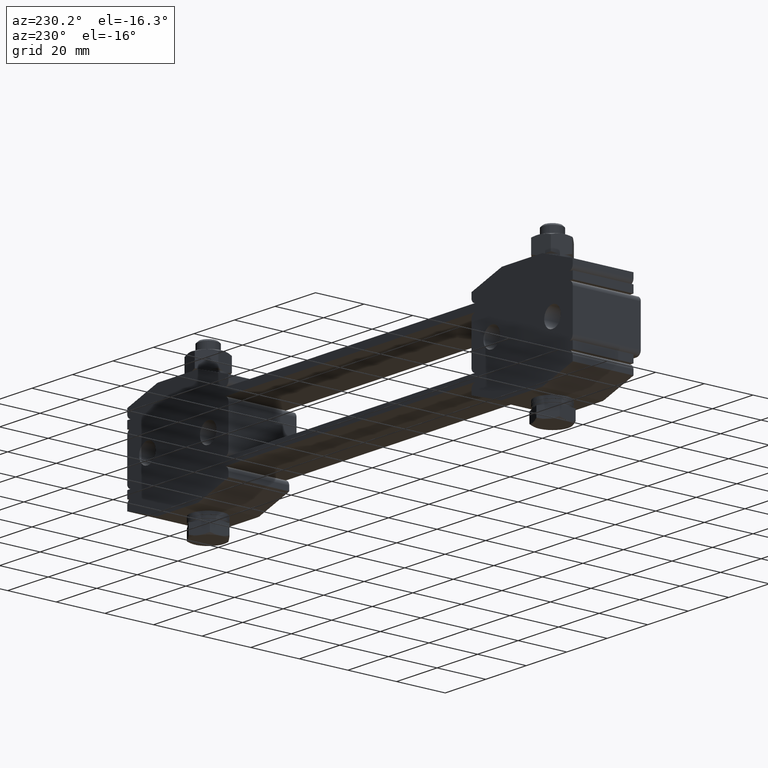
[diagram: clean part render]
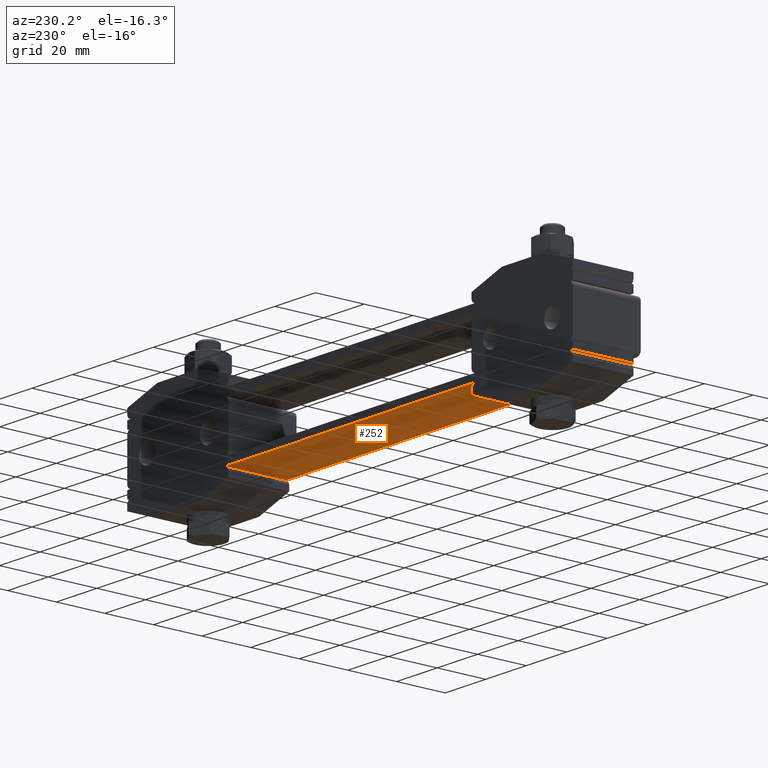
[diagram: same view with one face highlighted and labeled with its STEP entity id]
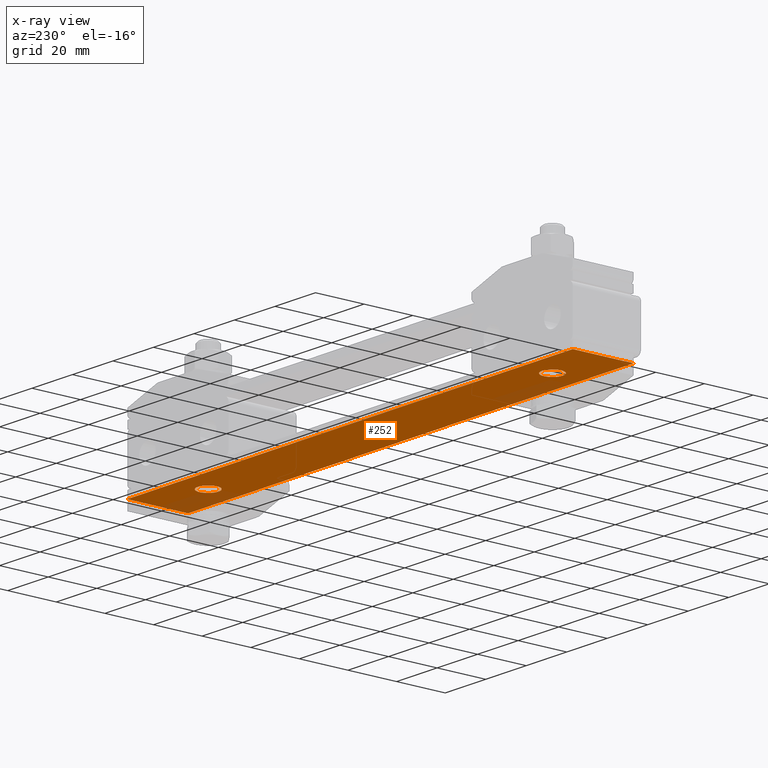
[diagram: x-ray of the same camera — body ghosted, the highlighted face saturated]
A machine part, auxiliary view. The second image highlights one B-rep face of the part: STEP entity #252.
The next image is the same camera in x-ray: the body ghosted, the highlighted face saturated — about 10% of this face is hidden behind the body in this view.
In plain terms, the highlighted planar face has unit normal (0, 0, 1).
Its self-contained STEP definition (entity closure, byte-faithful):
#252 = ADVANCED_FACE ( 'NONE', ( #19926, #18120, #3997 ), #19824, .F. ) ;
#714 = DIRECTION ( 'NONE',  ( 1.000000000000000000, 0.0000000000000000000, 0.0000000000000000000 ) ) ;
#1143 = CIRCLE ( 'NONE', #4591, 4.250000000000003600 ) ;
#1643 = EDGE_CURVE ( 'NONE', #16455, #8776, #7256, .T. ) ;
#1852 = EDGE_CURVE ( 'NONE', #15294, #11315, #16503, .T. ) ;
#1872 = DIRECTION ( 'NONE',  ( 1.000000000000000000, 0.0000000000000000000, 0.0000000000000000000 ) ) ;
#2664 = EDGE_CURVE ( 'NONE', #8776, #16455, #16703, .T. ) ;
#2844 = VECTOR ( 'NONE', #17029, 1000.000000000000000 ) ;
#3028 = VERTEX_POINT ( 'NONE', #3148 ) ;
#3146 = VERTEX_POINT ( 'NONE', #20947 ) ;
#3148 = CARTESIAN_POINT ( 'NONE',  ( 89.25000000000001400, 2.133878290461802200E-014, 0.0000000000000000000 ) ) ;
#3540 = CARTESIAN_POINT ( 'NONE',  ( -110.0000000000000000, -12.50000000000000000, 0.0000000000000000000 ) ) ;
#3997 = FACE_OUTER_BOUND ( 'NONE', #4867, .T. ) ;
#4006 = DIRECTION ( 'NONE',  ( 0.0000000000000000000, 0.0000000000000000000, -1.000000000000000000 ) ) ;
#4337 = CARTESIAN_POINT ( 'NONE',  ( 110.0000000000000000, 12.50000000000000000, 0.0000000000000000000 ) ) ;
#4379 = LINE ( 'NONE', #16954, #2844 ) ;
#4591 = AXIS2_PLACEMENT_3D ( 'NONE', #7356, #18838, #9116 ) ;
#4764 = ORIENTED_EDGE ( 'NONE', *, *, #15330, .F. ) ;
#4823 = LINE ( 'NONE', #6743, #14318 ) ;
#4867 = EDGE_LOOP ( 'NONE', ( #4764, #10879, #11140, #16963 ) ) ;
#5522 = DIRECTION ( 'NONE',  ( -1.000000000000000000, 0.0000000000000000000, 0.0000000000000000000 ) ) ;
#5712 = EDGE_CURVE ( 'NONE', #3146, #3028, #17015, .T. ) ;
#6003 = DIRECTION ( 'NONE',  ( -1.000000000000000000, 0.0000000000000000000, 0.0000000000000000000 ) ) ;
#6743 = CARTESIAN_POINT ( 'NONE',  ( -110.0000000000000000, -12.50000000000000000, 0.0000000000000000000 ) ) ;
#7021 = CARTESIAN_POINT ( 'NONE',  ( -89.25000000000001400, 0.0000000000000000000, 0.0000000000000000000 ) ) ;
#7256 = CIRCLE ( 'NONE', #8174, 4.250000000000003600 ) ;
#7257 = DIRECTION ( 'NONE',  ( 0.0000000000000000000, 0.0000000000000000000, -1.000000000000000000 ) ) ;
#7356 = CARTESIAN_POINT ( 'NONE',  ( 85.00000000000000000, 2.081830801498040100E-014, 0.0000000000000000000 ) ) ;
#7458 = DIRECTION ( 'NONE',  ( 0.0000000000000000000, -1.000000000000000000, 0.0000000000000000000 ) ) ;
#8174 = AXIS2_PLACEMENT_3D ( 'NONE', #8866, #4006, #5522 ) ;
#8776 = VERTEX_POINT ( 'NONE', #20817 ) ;
#8866 = CARTESIAN_POINT ( 'NONE',  ( -85.00000000000000000, 0.0000000000000000000, 0.0000000000000000000 ) ) ;
#8887 = CARTESIAN_POINT ( 'NONE',  ( -85.00000000000000000, 0.0000000000000000000, 0.0000000000000000000 ) ) ;
#9025 = CARTESIAN_POINT ( 'NONE',  ( -110.0000000000000000, 12.50000000000000000, 0.0000000000000000000 ) ) ;
#9116 = DIRECTION ( 'NONE',  ( -1.000000000000000000, 0.0000000000000000000, 0.0000000000000000000 ) ) ;
#9551 = DIRECTION ( 'NONE',  ( 0.0000000000000000000, 0.0000000000000000000, -1.000000000000000000 ) ) ;
#10319 = CARTESIAN_POINT ( 'NONE',  ( 110.0000000000000000, -12.50000000000000000, 0.0000000000000000000 ) ) ;
#10534 = DIRECTION ( 'NONE',  ( -1.000000000000000000, 0.0000000000000000000, 0.0000000000000000000 ) ) ;
#10879 = ORIENTED_EDGE ( 'NONE', *, *, #13334, .F. ) ;
#11140 = ORIENTED_EDGE ( 'NONE', *, *, #1852, .F. ) ;
#11315 = VERTEX_POINT ( 'NONE', #4337 ) ;
#11363 = EDGE_LOOP ( 'NONE', ( #20173, #12164 ) ) ;
#11686 = CARTESIAN_POINT ( 'NONE',  ( -110.0000000000000000, 12.50000000000000000, 0.0000000000000000000 ) ) ;
#11927 = VECTOR ( 'NONE', #17747, 1000.000000000000000 ) ;
#12164 = ORIENTED_EDGE ( 'NONE', *, *, #16200, .F. ) ;
#12397 = AXIS2_PLACEMENT_3D ( 'NONE', #20711, #9551, #6003 ) ;
#12899 = EDGE_LOOP ( 'NONE', ( #21093, #19384 ) ) ;
#13271 = AXIS2_PLACEMENT_3D ( 'NONE', #8887, #7257, #10534 ) ;
#13334 = EDGE_CURVE ( 'NONE', #11315, #14154, #4379, .T. ) ;
#13795 = DIRECTION ( 'NONE',  ( 0.0000000000000000000, 0.0000000000000000000, 1.000000000000000000 ) ) ;
#13833 = VECTOR ( 'NONE', #7458, 1000.000000000000000 ) ;
#14154 = VERTEX_POINT ( 'NONE', #11686 ) ;
#14318 = VECTOR ( 'NONE', #1872, 1000.000000000000000 ) ;
#15261 = CARTESIAN_POINT ( 'NONE',  ( -110.0000000000000000, -12.50000000000000000, 0.0000000000000000000 ) ) ;
#15294 = VERTEX_POINT ( 'NONE', #10319 ) ;
#15330 = EDGE_CURVE ( 'NONE', #14154, #16066, #15663, .T. ) ;
#15647 = EDGE_CURVE ( 'NONE', #16066, #15294, #4823, .T. ) ;
#15663 = LINE ( 'NONE', #9025, #13833 ) ;
#16066 = VERTEX_POINT ( 'NONE', #15261 ) ;
#16129 = CARTESIAN_POINT ( 'NONE',  ( 110.0000000000000000, 12.50000000000000000, 0.0000000000000000000 ) ) ;
#16200 = EDGE_CURVE ( 'NONE', #3028, #3146, #1143, .T. ) ;
#16455 = VERTEX_POINT ( 'NONE', #7021 ) ;
#16503 = LINE ( 'NONE', #16129, #11927 ) ;
#16703 = CIRCLE ( 'NONE', #13271, 4.250000000000003600 ) ;
#16954 = CARTESIAN_POINT ( 'NONE',  ( -110.0000000000000000, 12.50000000000000000, 0.0000000000000000000 ) ) ;
#16963 = ORIENTED_EDGE ( 'NONE', *, *, #15647, .F. ) ;
#17015 = CIRCLE ( 'NONE', #12397, 4.250000000000003600 ) ;
#17029 = DIRECTION ( 'NONE',  ( -1.000000000000000000, 5.519574696289839900E-017, 0.0000000000000000000 ) ) ;
#17747 = DIRECTION ( 'NONE',  ( 0.0000000000000000000, 1.000000000000000000, 0.0000000000000000000 ) ) ;
#18120 = FACE_BOUND ( 'NONE', #11363, .T. ) ;
#18732 = AXIS2_PLACEMENT_3D ( 'NONE', #3540, #13795, #714 ) ;
#18838 = DIRECTION ( 'NONE',  ( 0.0000000000000000000, 0.0000000000000000000, -1.000000000000000000 ) ) ;
#19384 = ORIENTED_EDGE ( 'NONE', *, *, #2664, .F. ) ;
#19824 = PLANE ( 'NONE',  #18732 ) ;
#19926 = FACE_BOUND ( 'NONE', #12899, .T. ) ;
#20173 = ORIENTED_EDGE ( 'NONE', *, *, #5712, .F. ) ;
#20711 = CARTESIAN_POINT ( 'NONE',  ( 85.00000000000000000, 2.081830801498040100E-014, 0.0000000000000000000 ) ) ;
#20817 = CARTESIAN_POINT ( 'NONE',  ( -80.75000000000000000, 5.204748896376247700E-016, 0.0000000000000000000 ) ) ;
#20947 = CARTESIAN_POINT ( 'NONE',  ( 80.75000000000000000, 2.081830801498040100E-014, 0.0000000000000000000 ) ) ;
#21093 = ORIENTED_EDGE ( 'NONE', *, *, #1643, .F. ) ;